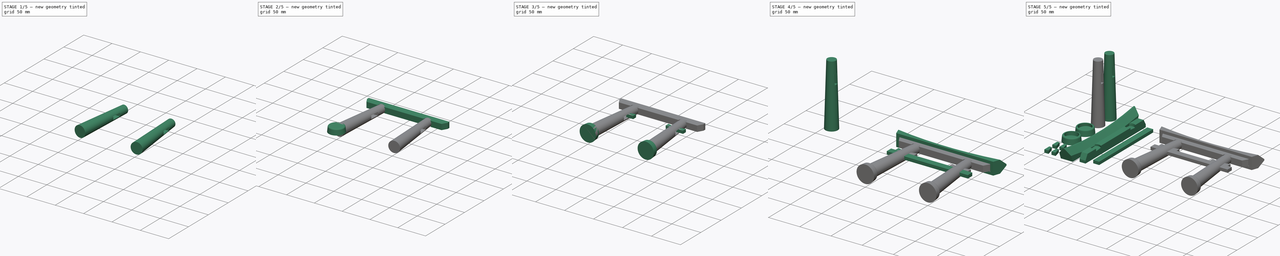
[diagram: build sequence overview — one tinted view per stage of 5, left to right]
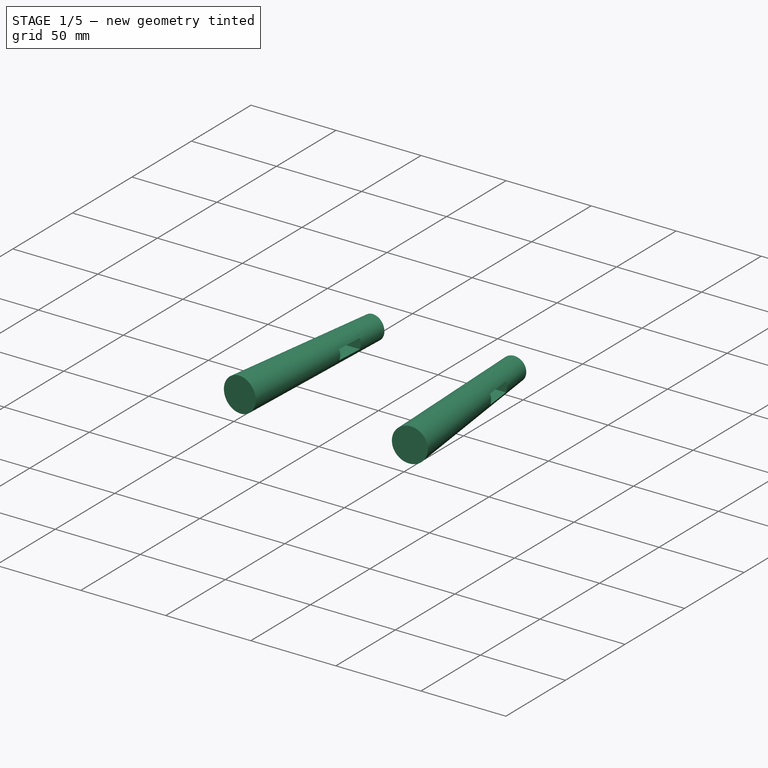
[diagram: stage 1 of 5 — iso view after this stage's code; geometry added in this stage tinted green]
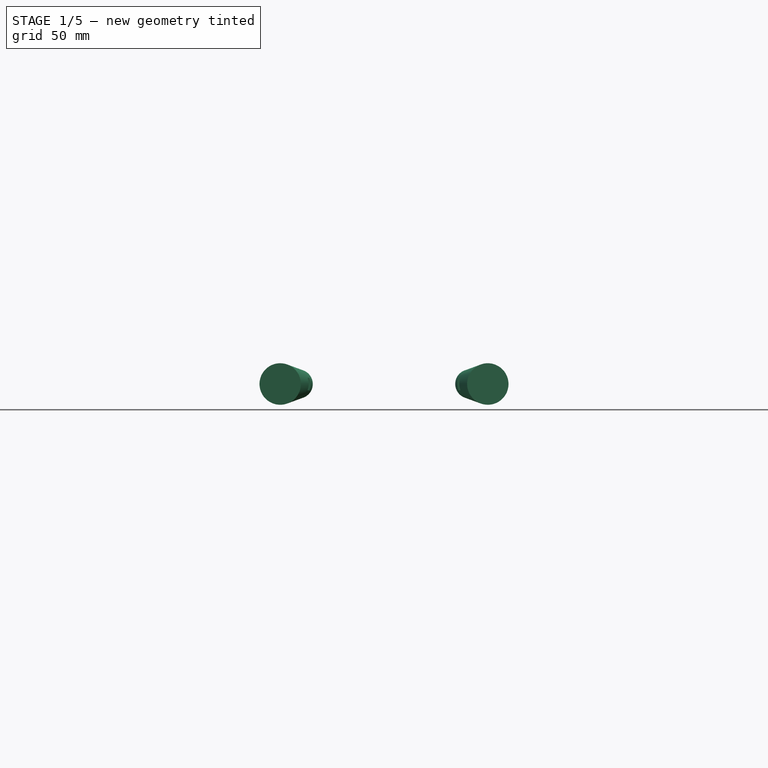
[diagram: stage 1 of 5 — front view after this stage's code; geometry added in this stage tinted green]
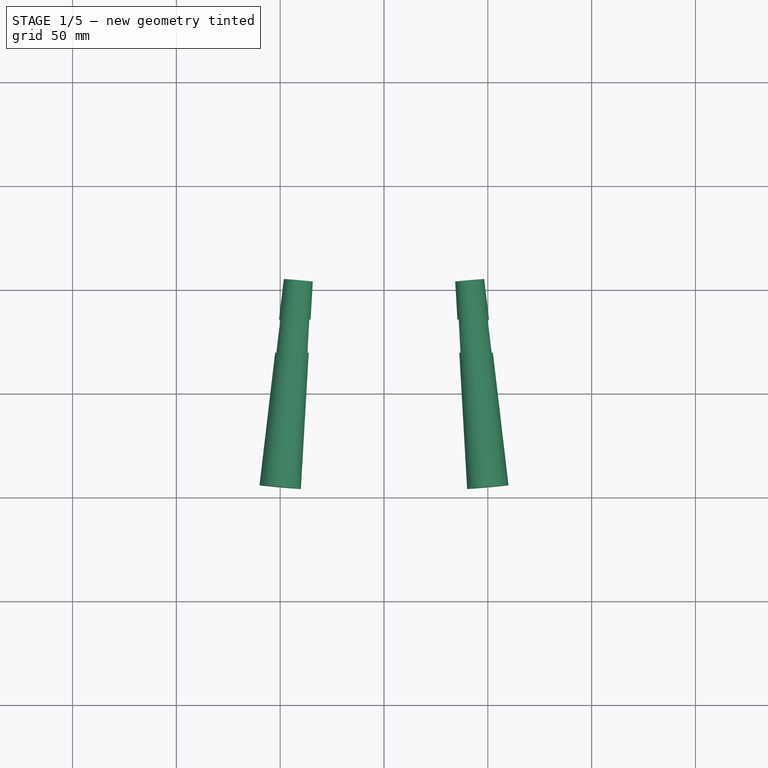
[diagram: stage 1 of 5 — top view after this stage's code; geometry added in this stage tinted green]
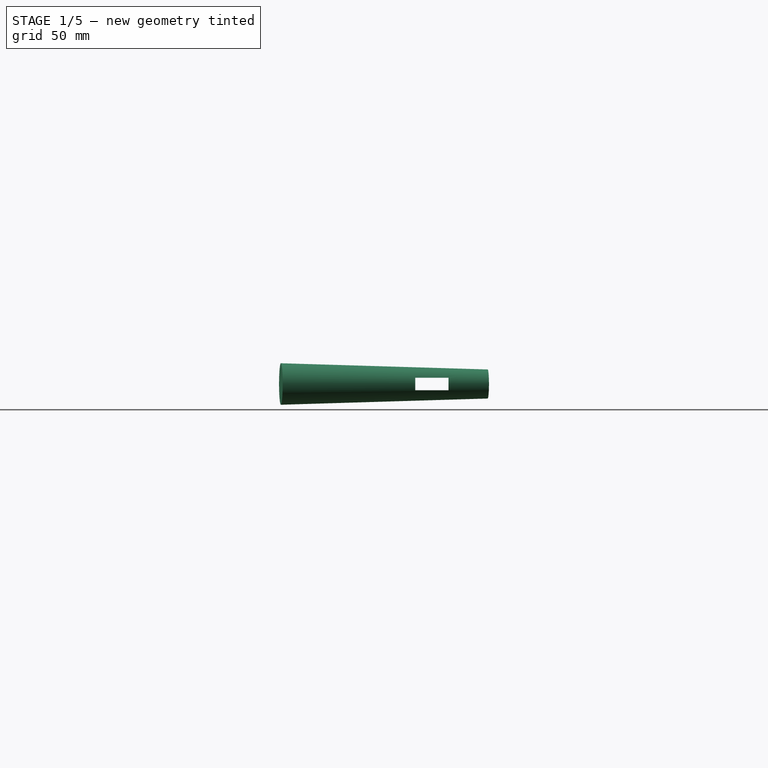
[diagram: stage 1 of 5 — right view after this stage's code; geometry added in this stage tinted green]
FCSTD DOCUMENT  (FreeCAD 0.15R4671 (Git))
Label: Torii
License: CreativeCommons Attribution-ShareAlike
LicenseURL: http://creativecommons.org/licenses/by-sa/4.0/
objects: Part::FeaturePython×29, App::Annotation×6, Part::Part2DObjectPython×6, Part::Cut×5, Part::Wedge×4, Part::Offset×4, App::DocumentObjectGroup×4, Part::Box×3, Part::Cone×2, Sketcher::SketchObject×2, PartDesign::Pocket×2, Part::Fillet×1, PartDesign::Chamfer×1, Part::MultiFuse×1
note: 62 computed .brp shape members not serialized (recipe doc carries the construction recipe); baked Part::Feature solids carry a one-line shape summary decoded from their .brp

FEATURE [Part::Cone] Cone  label="Column Seed"
  Angle = 360
  Height = 100
  Placement = pos=(0,0,5) rot=(-1,0,0;0.087266rad)
  Radius1 = 10
  Radius2 = 7
FEATURE [Part::Box] Box001  label="Crossing Board"
  Height = 10
  Length = 5
  Placement = pos=(2.5,115,70.5) rot=(0,0,1;3.14159rad)
  Width = 130
FEATURE [Part::FeaturePython] Clone003  label="Clone of Column Seed"  # Draft clone (typed FeaturePython)
  Objects = -> [Cone]
  Placement = pos=(0,100,5) rot=(1,0,0;0.087266rad)
  Scale = (1,1,1)
FEATURE [Part::FeaturePython] Clone  label="Clone of Crossing Board"  # Draft clone (typed FeaturePython)
  Objects = -> [Box001]
  Placement = pos=(2.5,115,35) rot=(0,0,1;3.14159rad)
  Scale = (1,1,1.5)
FEATURE [Part::Offset] Offset002  label="Crossing Board ClearanceObj"
  Fill = false
  Intersection = false
  Join = 2
  Mode = 0
  SelfIntersection = false
  Source = -> Clone
  Value = 0.5
FEATURE [Part::FeaturePython] Clone023  label="Clone of Crossing Board Offset"  # Draft clone (typed FeaturePython)
  Objects = -> [Offset002]
  Scale = (1,1,1)
FEATURE [Part::Cut] Cut  label="Left Column"
  Base = -> Cone
  Tool = -> Offset002
FEATURE [Part::Cut] Cut008  label="Right Column"
  Base = -> Clone003
  Tool = -> Clone023
FEATURE [Part::FeaturePython] Clone045  label="Left Hashira"  # Draft clone (typed FeaturePython)
  Objects = -> [Cut]
  Placement = pos=(0,0,0) rot=(0.57735,0.57735,0.57735;4.18879rad)
  Scale = (1,1,1)
FEATURE [Part::FeaturePython] Clone046  label="Right Hashira"  # Draft clone (typed FeaturePython)
  Objects = -> [Cut008]
  Placement = pos=(0,0,0) rot=(0.57735,0.57735,0.57735;4.18879rad)
  Scale = (1,1,1)
FEATURE [App::Annotation] Text  label="Kamebara Text"
  LabelText = Kamebara
  Position = (127,27,0)
FEATURE [Part::Part2DObjectPython] DWire  label="Kamebara Line"  # Draft 2D object (typed FeaturePython)
  ChamferSize = 0
  Closed = false
  End = (109,2,0)
  FilletRadius = 0
  Length = 78.7321
  MakeFace = true
  Points = (3) [(178,24,0),(129,24,0),(109,2,0)]
  Start = (178,24,0)
FEATURE [App::Annotation] Text001  label="Hashira Text"
  LabelText = Hashira
  Position = (29,45,0)
FEATURE [Part::Part2DObjectPython] DWire001  label="Hashira Line"  # Draft 2D object (typed FeaturePython)
  ChamferSize = 0
  Closed = false
  End = (100,27,0)
  FilletRadius = 0
  Length = 106.79
  MakeFace = true
  Points = (4) [(0,27,0),(30,42,0),(67,42,0),(100,27,0)]
  Start = (0,27,0)
FEATURE [App::Annotation] Text002  label="Nuki Text"
  LabelText = Nuki
  Position = (132,61,0)
FEATURE [Part::Part2DObjectPython] DWire002  label="Nuki Line"  # Draft 2D object (typed FeaturePython)
  ChamferSize = 0
  Closed = false
  End = (106,75,0)
  FilletRadius = 0
  Length = 56.0644
  MakeFace = true
  Points = (3) [(157,58,0),(132,58,0),(106,75,0)]
  Start = (157,58,0)
FEATURE [App::Annotation] Text003  label="Kusabi Text"
  LabelText = Kusabi
  Position = (138,84,0)
FEATURE [Part::Part2DObjectPython] DWire003  label="Kusabi Line"  # Draft 2D object (typed FeaturePython)
  ChamferSize = 0
  Closed = false
  End = (107,84,0)
  FilletRadius = 0
  Length = 66.0624
  MakeFace = true
  Points = (3) [(173,82,0),(139,82,0),(107,84,0)]
  Start = (173,82,0)
FEATURE [App::Annotation] Text004  label="Shimaki Text"
  LabelText = Shimaki
  Position = (151,111,0)
FEATURE [Part::Part2DObjectPython] DWire004  label="Shimaki Line"  # Draft 2D object (typed FeaturePython)
  ChamferSize = 0
  Closed = false
  End = (114,105,0)
  FilletRadius = 0
  Length = 78.2156
  MakeFace = true
  Points = (3) [(192,109,0),(151,109,0),(114,105,0)]
  Start = (192,109,0)
FEATURE [App::Annotation] Text005  label="Kasagi Text"
  LabelText = Kasagi
  Position = (157,139,0)
FEATURE [Part::Part2DObjectPython] DWire005  label="Kasagi Line"  # Draft 2D object (typed FeaturePython)
  ChamferSize = 0
  Closed = false
  End = (126,121,0)
  FilletRadius = 0
  Length = 66.5398
  MakeFace = true
  Points = (3) [(190,134,0),(158,134,0),(126,121,0)]
  Start = (190,134,0)
FEATURE [App::DocumentObjectGroup] Group003  label="Annotations"
  Group = -> [Text,DWire,Text001,DWire001,Text002,DWire002,Text003,DWire003,Text004,DWire004,Text005,DWire005]
FEATURE [App::DocumentObjectGroup] Group  label="Torii Mounted"
  Group = -> [Clone036,Clone037,Clone038,Clone039,Clone040,Clone041,Clone042,Clone043,Clone044,Clone045,Clone046,Group003]
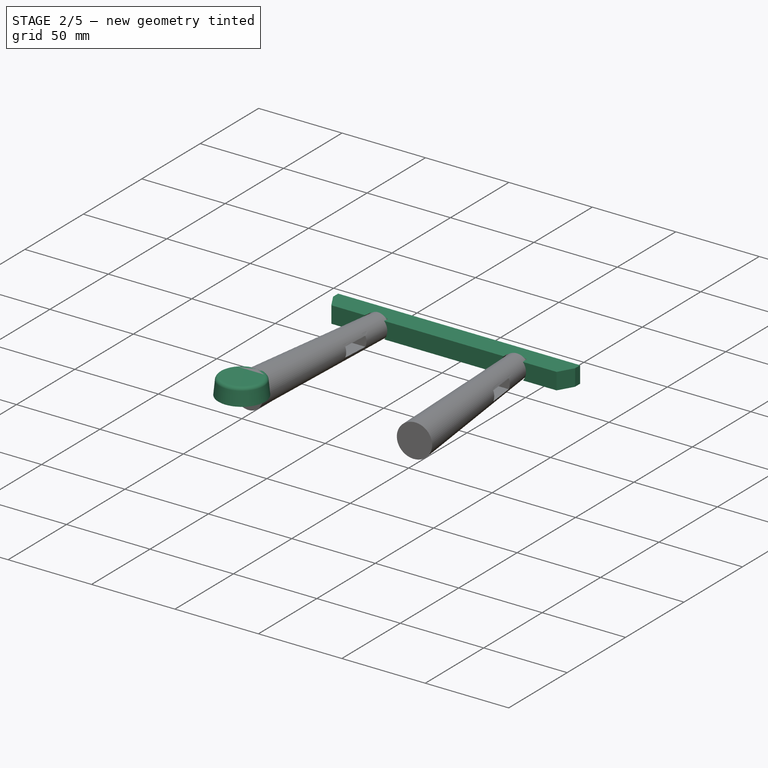
[diagram: stage 2 of 5 — iso view after this stage's code; geometry added in this stage tinted green]
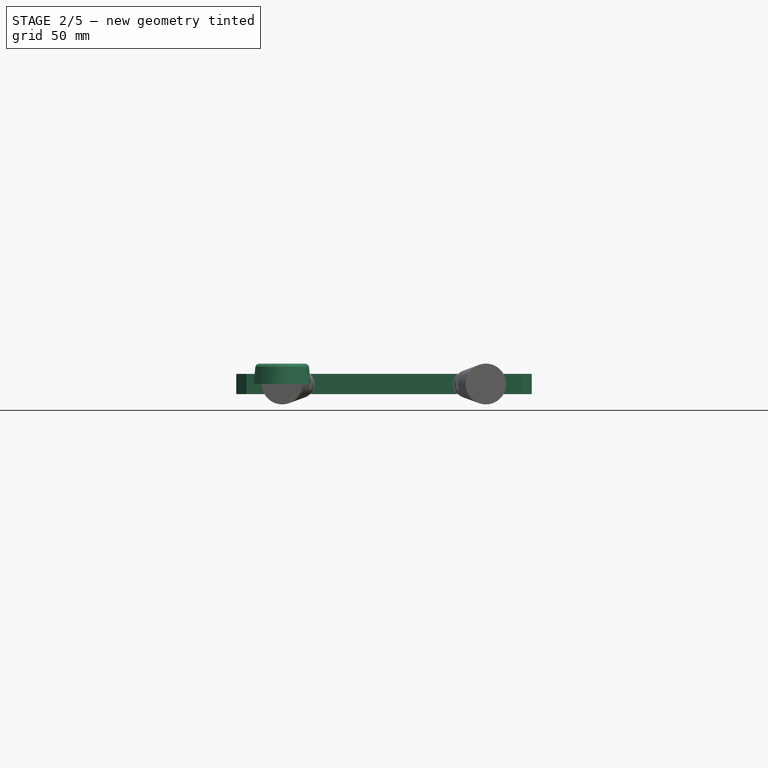
[diagram: stage 2 of 5 — front view after this stage's code; geometry added in this stage tinted green]
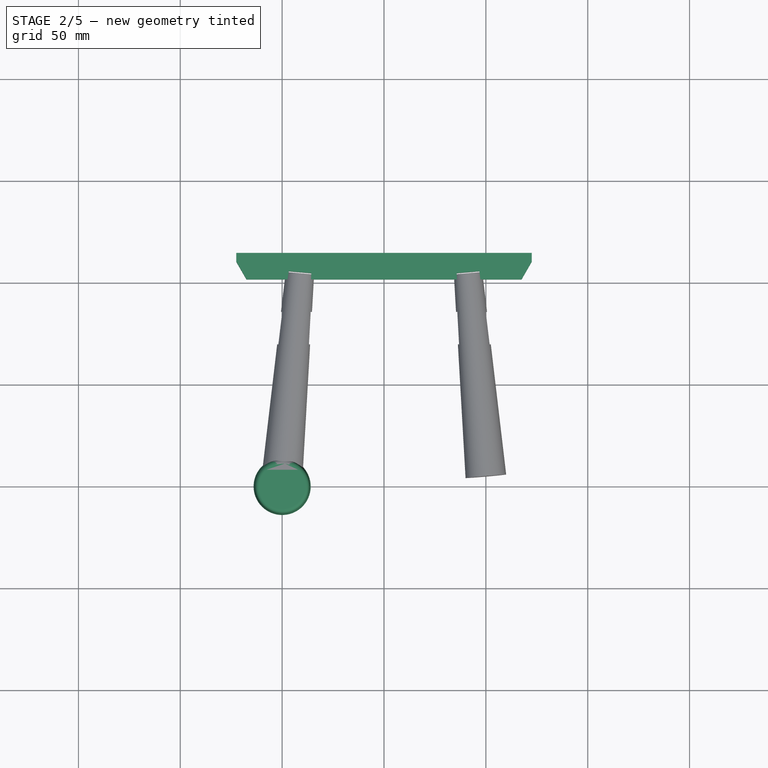
[diagram: stage 2 of 5 — top view after this stage's code; geometry added in this stage tinted green]
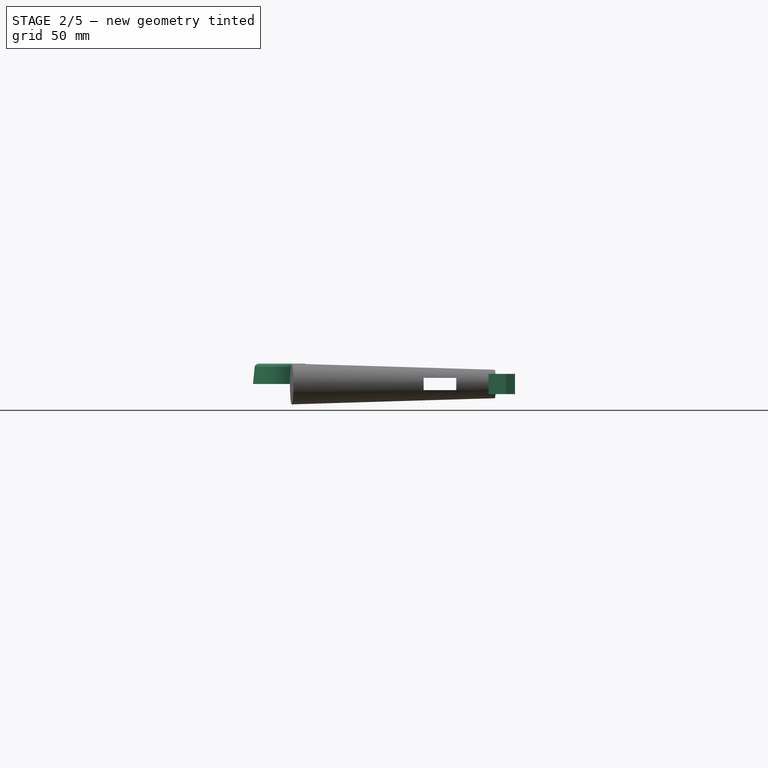
[diagram: stage 2 of 5 — right view after this stage's code; geometry added in this stage tinted green]
FEATURE [Part::Box] Box002  label="Tier 1 Top Board Seed"
  Height = 13
  Length = 10
  Placement = pos=(-5,-25,101.619) rot=(0,0,1;0rad)
  Width = 150
FEATURE [Sketcher::SketchObject] Sketch
  ExternalGeometry = -> [Box002]
  Placement = pos=(-5,-25,101.619) rot=(0.57735,-0.57735,-0.57735;2.0944rad)
  Support = -> Box002 [Face1]
  sketch-geometry (17):
    g0: LineSegment [constr] StartX=-142.494 StartY=0 StartZ=0 EndX=-150 EndY=13 EndZ=0
    g1: LineSegment [constr] StartX=-150 StartY=13 StartZ=0 EndX=-150 EndY=19.7044 EndZ=0
    g2: LineSegment [constr] StartX=-150 StartY=19.7044 StartZ=0 EndX=0 EndY=19.7044 EndZ=0
    g3: LineSegment [constr] StartX=0 StartY=19.7044 StartZ=0 EndX=0 EndY=13 EndZ=0
    g4: LineSegment [constr] StartX=0 StartY=13 StartZ=0 EndX=-7.50555 EndY=0 EndZ=0
    g5: LineSegment StartX=-7.50555 StartY=0 StartZ=0 EndX=-7.50555 EndY=-8.96614 EndZ=0
    g6: LineSegment StartX=-7.50555 StartY=-8.96614 StartZ=0 EndX=16.15 EndY=-8.96614 EndZ=0
    g7: LineSegment StartX=16.15 StartY=-8.96614 StartZ=0 EndX=16.15 EndY=25.7571 EndZ=0
    g8: LineSegment StartX=16.15 StartY=25.7571 StartZ=0 EndX=-161.324 EndY=25.7571 EndZ=0
    g9: LineSegment StartX=-161.324 StartY=25.7571 StartZ=0 EndX=-161.324 EndY=-10.1845 EndZ=0
    g10: LineSegment StartX=-161.324 StartY=-10.1845 StartZ=0 EndX=-142.494 EndY=-10.1845 EndZ=0
    g11: LineSegment StartX=-142.494 StartY=-10.1845 StartZ=0 EndX=-142.494 EndY=0 EndZ=0
    g12: LineSegment StartX=-147.5 StartY=19.7044 StartZ=0 EndX=-147.5 EndY=8.66987 EndZ=0
    g13: LineSegment StartX=-147.5 StartY=8.66987 StartZ=0 EndX=-142.494 EndY=0 EndZ=0
    g14: LineSegment StartX=-2.5 StartY=19.7044 StartZ=0 EndX=-2.5 EndY=8.66987 EndZ=0
    g15: LineSegment StartX=-7.50555 StartY=0 StartZ=0 EndX=-2.5 EndY=8.66987 EndZ=0
    g16: LineSegment StartX=-2.5 StartY=19.7044 StartZ=0 EndX=-147.5 EndY=19.7044 EndZ=0
  constraints (42):
    c: PointOnObject(g0,g-4)
    c: Coincident(g0,g-3)
    c: Coincident(g0,g1)
    c: Coincident(g1,g2)
    c: Horizontal(g2)
    c: Coincident(g2,g3)
    c: Coincident(g3,g-3)
    c: Vertical(g3)
    c: Coincident(g3,g4)
    c: PointOnObject(g4,g-4)
    c: Coincident(g4,g5)
    c: Vertical(g5)
    c: Coincident(g5,g6)
    c: Horizontal(g6)
    c: Coincident(g6,g7)
    c: Vertical(g7)
    c: Coincident(g7,g8)
    c: Horizontal(g8)
    c: Coincident(g8,g9)
    c: Vertical(g9)
    c: Coincident(g9,g10)
    c: Horizontal(g10)
    c: Coincident(g10,g11)
    c: Coincident(g11,g0)
    c: Vertical(g11)
    c: Angle(g0,g-3) = 1.0472
    c: Angle(g-3,g4) = 1.0472
    c: Vertical(g1)
    c: PointOnObject(g12,g2)
    c: Vertical(g12)
    c: PointOnObject(g12,g0)
    c: Coincident(g13,g12)
    c: Coincident(g13,g0)
    c: PointOnObject(g14,g2)
    c: PointOnObject(g14,g4)
    c: Vertical(g14)
    c: Coincident(g15,g4)
    c: Coincident(g15,g14)
    c: Coincident(g16,g14)
    c: Coincident(g16,g12)
    c: DistanceX(g1,g12) = 2.5
    c: DistanceX(g14,g2) = 2.5
FEATURE [PartDesign::Pocket] Pocket
  Length = 5
  Placement = pos=(-5,-25,101.619) rot=(0,0,1;0rad)
  Sketch = -> Sketch
  Type = 1
FEATURE [Part::Cone] Cone004
  Angle = 360
  Height = 10
  Radius1 = 14
  Radius2 = 13
FEATURE [Part::Fillet] Fillet002
  Base = -> Cone004
  Edges = 1 edges r=2: [Edge1]
FEATURE [Part::FeaturePython] Clone020  label="Clone of Column Seed001"  # Draft clone (typed FeaturePython)
  Objects = -> [Clone003]
  Placement = pos=(0,100,5) rot=(1,0,0;0.087266rad)
  Scale = (1,1,1)
FEATURE [Part::Offset] Offset  label="Right Column ClearanceObj"
  Fill = false
  Intersection = false
  Join = 2
  Mode = 0
  SelfIntersection = false
  Source = -> Clone020
  Value = 0.5
FEATURE [Part::FeaturePython] Clone021  label="Clone of Column Seed002"  # Draft clone (typed FeaturePython)
  Objects = -> [Cone]
  Placement = pos=(0,0,5) rot=(-1,0,0;0.087266rad)
  Scale = (1,1,1)
FEATURE [Part::Offset] Offset001  label="Left Column ClearanceObj"
  Fill = false
  Intersection = false
  Join = 2
  Mode = 0
  SelfIntersection = false
  Source = -> Clone021
  Value = 0.5
FEATURE [Part::MultiFuse] Fusion  label="Columns with Offset"
  Shapes = -> [Offset,Offset001]
FEATURE [Part::Cut] Cut007  label="Tier 1 Roof"
  Base = -> Pocket
  Tool = -> Fusion
FEATURE [Part::FeaturePython] Clone044  label="Shimaki"  # Draft clone (typed FeaturePython)
  Objects = -> [Cut007]
  Placement = pos=(0,0,0) rot=(0.57735,0.57735,0.57735;4.18879rad)
  Scale = (1,1,1)
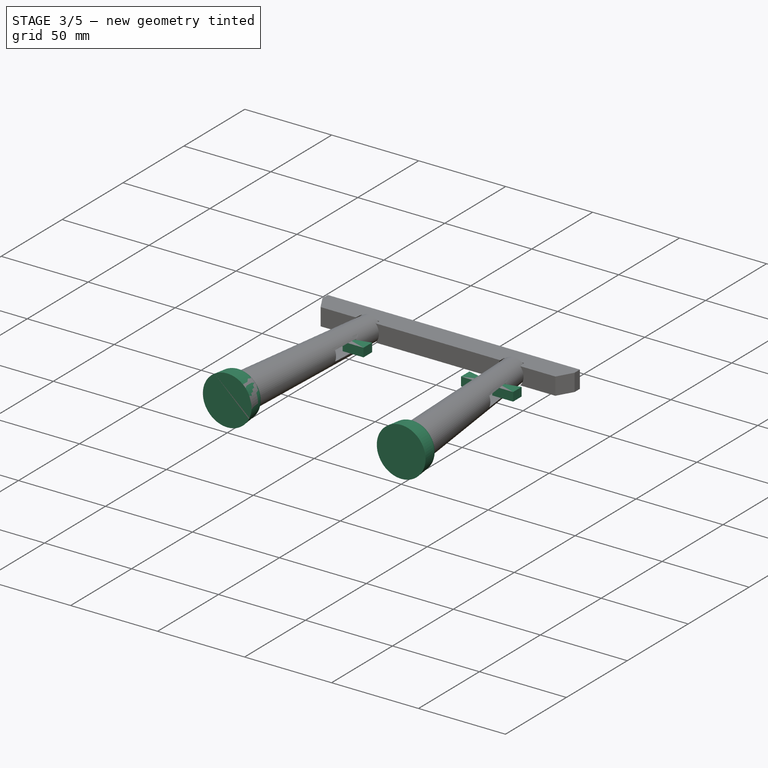
[diagram: stage 3 of 5 — iso view after this stage's code; geometry added in this stage tinted green]
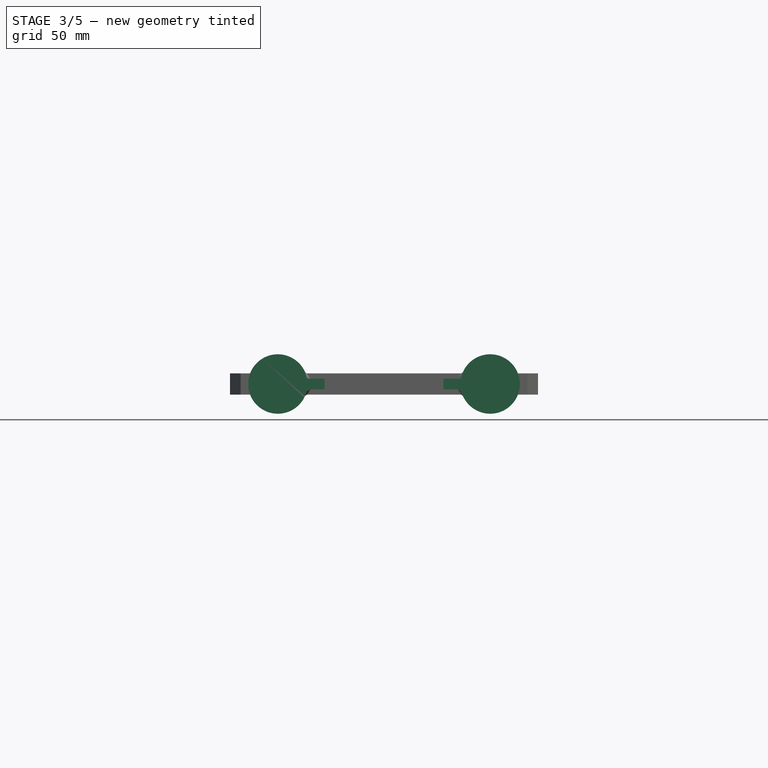
[diagram: stage 3 of 5 — front view after this stage's code; geometry added in this stage tinted green]
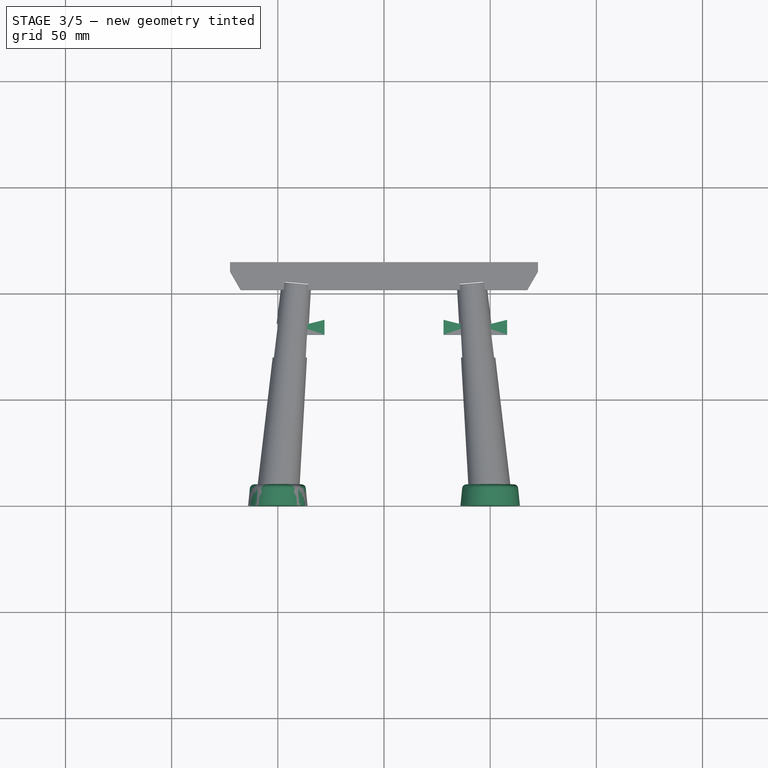
[diagram: stage 3 of 5 — top view after this stage's code; geometry added in this stage tinted green]
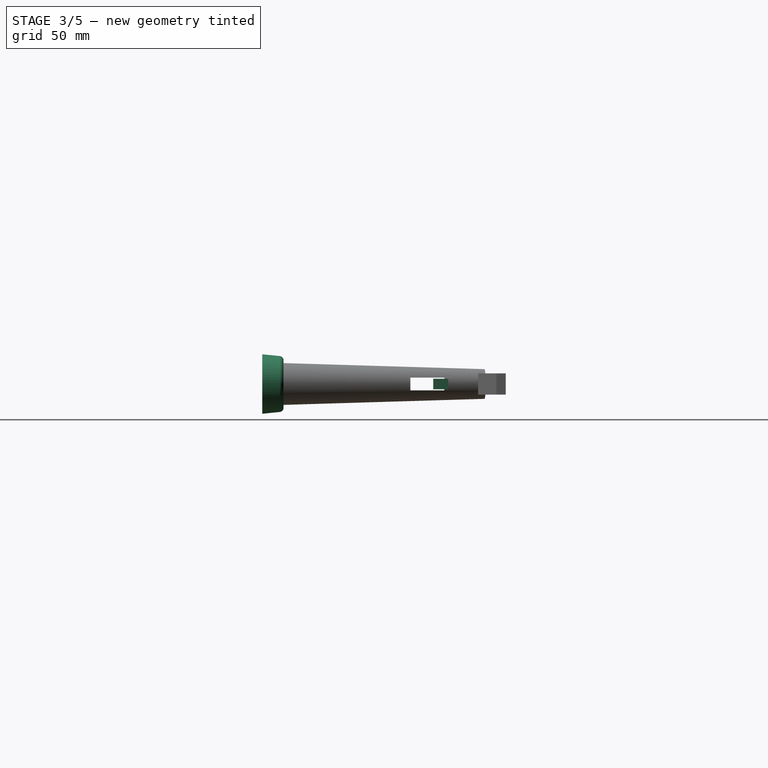
[diagram: stage 3 of 5 — right view after this stage's code; geometry added in this stage tinted green]
FEATURE [Part::Wedge] Wedge001  label="Wedge 2"
  Placement = pos=(-2.5,78,80.5) rot=(0,0,1;0rad)
  X2max = 5
  X2min = 0
  Xmax = 5
  Xmin = 0
  Ymax = 12
  Ymin = 0
  Z2max = 4
  Z2min = 0
  Zmax = 7
  Zmin = 0
FEATURE [Part::Wedge] Wedge002  label="Wedge 3"
  Placement = pos=(2.5,108,80.5) rot=(0,0,1;3.14159rad)
  X2max = 5
  X2min = 0
  Xmax = 5
  Xmin = 0
  Ymax = 12
  Ymin = 0
  Z2max = 4
  Z2min = 0
  Zmax = 7
  Zmin = 0
FEATURE [Part::Wedge] Wedge003  label="Wedge 4"
  Placement = pos=(2.5,22,80.5) rot=(0,0,1;3.14159rad)
  X2max = 5
  X2min = 0
  Xmax = 5
  Xmin = 0
  Ymax = 12
  Ymin = 0
  Z2max = 4
  Z2min = 0
  Zmax = 7
  Zmin = 0
FEATURE [Part::Cut] Cut006  label="Left Base"
  Base = -> Fillet002
  Tool = -> Offset001
FEATURE [Part::FeaturePython] Clone022  label="Right Base"  # Draft clone (typed FeaturePython)
  Objects = -> [Cut006]
  Placement = pos=(0,100,0) rot=(0,0,1;3.14159rad)
  Scale = (1,1,1)
FEATURE [Part::FeaturePython] Clone039  label="Kusabi 2"  # Draft clone (typed FeaturePython)
  Objects = -> [Wedge001]
  Placement = pos=(78,80.5,-2.5) rot=(0.57735,0.57735,0.57735;4.18879rad)
  Scale = (1,1,1)
FEATURE [Part::FeaturePython] Clone040  label="Kusabi 3"  # Draft clone (typed FeaturePython)
  Objects = -> [Wedge002]
  Placement = pos=(108,80.5,2.5) rot=(-0.57735,0.57735,0.57735;2.0944rad)
  Scale = (1,1,1)
FEATURE [Part::FeaturePython] Clone041  label="Kusabi 4"  # Draft clone (typed FeaturePython)
  Objects = -> [Wedge003]
  Placement = pos=(22,80.5,2.5) rot=(-0.57735,0.57735,0.57735;2.0944rad)
  Scale = (1,1,1)
FEATURE [Part::FeaturePython] Clone042  label="Left Kamebara"  # Draft clone (typed FeaturePython)
  Objects = -> [Cut006]
  Placement = pos=(0,0,0) rot=(0.57735,0.57735,0.57735;4.18879rad)
  Scale = (1,1,1)
FEATURE [Part::FeaturePython] Clone043  label="Right Kamebara"  # Draft clone (typed FeaturePython)
  Objects = -> [Clone022]
  Placement = pos=(100,0,0) rot=(0.57735,-0.57735,-0.57735;4.18879rad)
  Scale = (1,1,1)
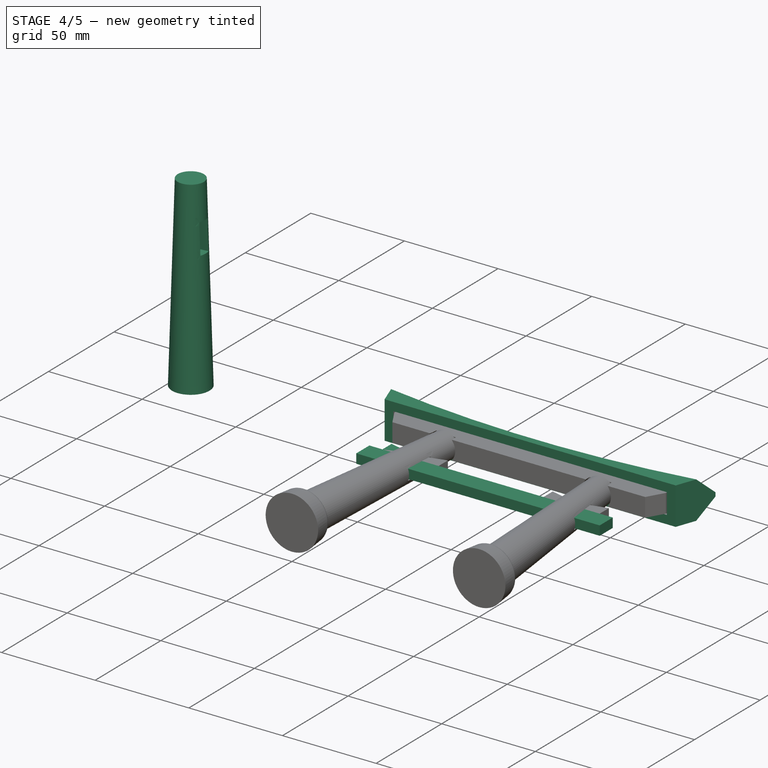
[diagram: stage 4 of 5 — iso view after this stage's code; geometry added in this stage tinted green]
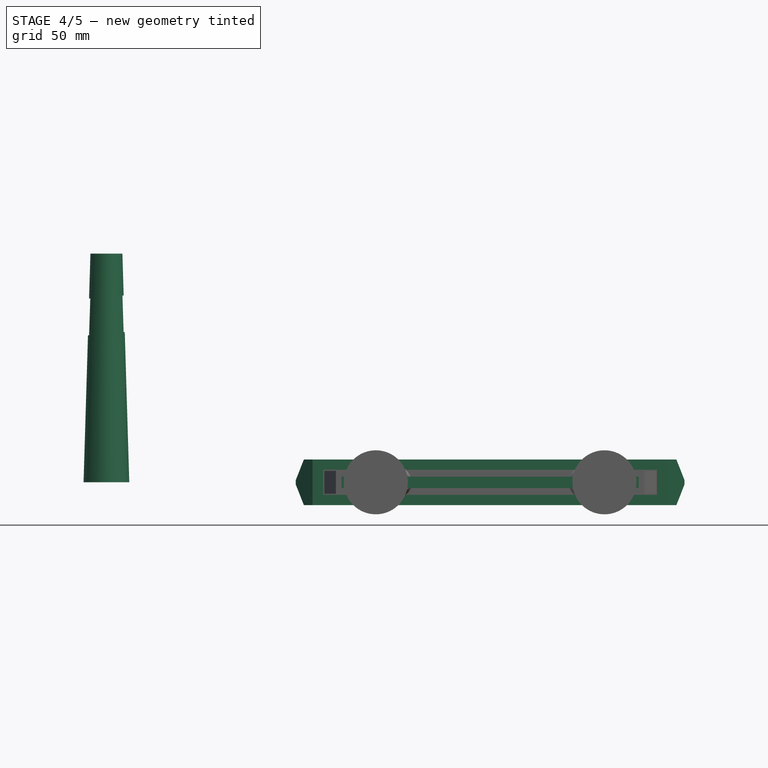
[diagram: stage 4 of 5 — front view after this stage's code; geometry added in this stage tinted green]
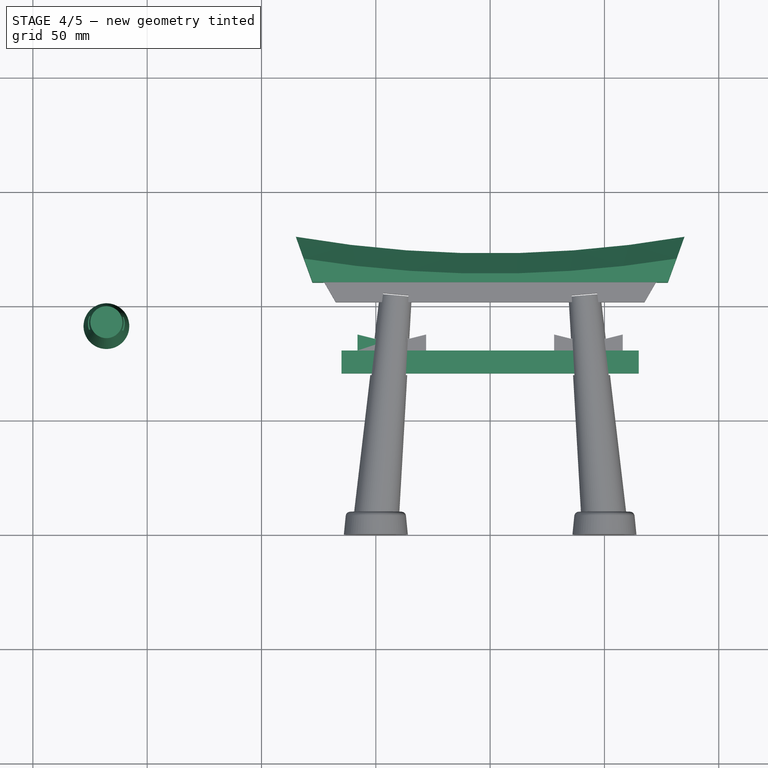
[diagram: stage 4 of 5 — top view after this stage's code; geometry added in this stage tinted green]
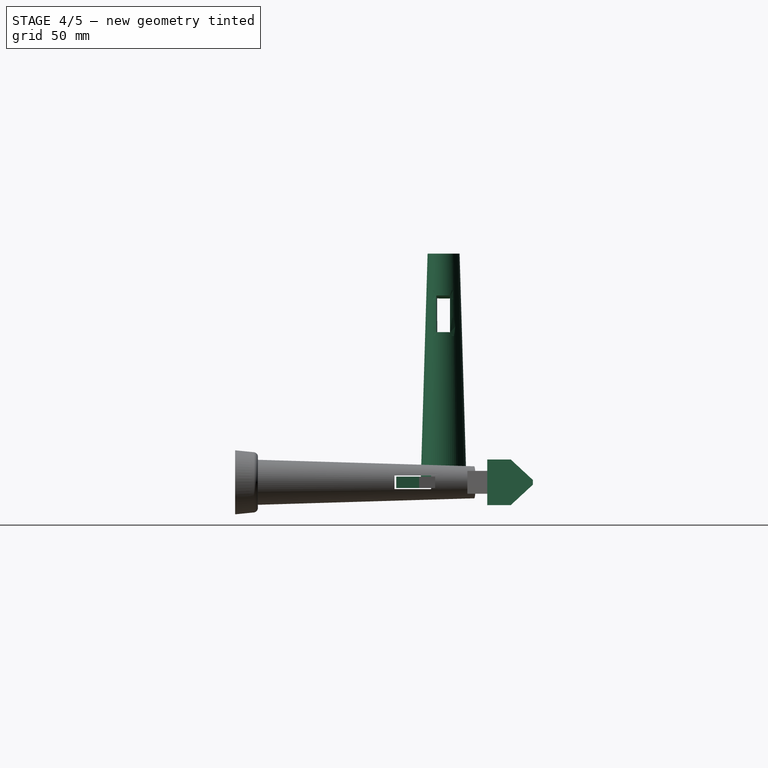
[diagram: stage 4 of 5 — right view after this stage's code; geometry added in this stage tinted green]
FEATURE [Part::Wedge] Wedge  label="Wedge 1"
  Placement = pos=(-2.5,-8,80.5) rot=(0,0,1;0rad)
  X2max = 5
  X2min = 0
  Xmax = 5
  Xmin = 0
  Ymax = 12
  Ymin = 0
  Z2max = 4
  Z2min = 0
  Zmax = 7
  Zmin = 0
FEATURE [Part::Box] Box003  label="Tier 2 Top Board Seed"
  Height = 20
  Length = 20
  Placement = pos=(-10,-35,110.289) rot=(0,0,1;0rad)
  Width = 170
FEATURE [Sketcher::SketchObject] Sketch001
  ExternalGeometry = -> [Box003]
  Placement = pos=(-10,-35,110.289) rot=(0.57735,-0.57735,-0.57735;2.0944rad)
  Support = -> Box003 [Face1]
  sketch-geometry (12):
    g0: LineSegment StartX=-170 StartY=20 StartZ=0 EndX=-162.721 EndY=0 EndZ=0
    g1: LineSegment StartX=-162.721 StartY=0 StartZ=0 EndX=-162.721 EndY=-11.7123 EndZ=0
    g2: LineSegment StartX=-162.721 StartY=-11.7123 StartZ=0 EndX=-178.952 EndY=-11.7123 EndZ=0
    g3: LineSegment StartX=-178.952 StartY=-11.7123 StartZ=0 EndX=-178.952 EndY=27.4623 EndZ=0
    g4: LineSegment StartX=-178.952 StartY=27.4623 StartZ=0 EndX=7.77564 EndY=27.4623 EndZ=0
    g5: LineSegment StartX=7.77564 StartY=27.4623 StartZ=0 EndX=7.77564 EndY=-10.7013 EndZ=0
    g6: LineSegment StartX=7.77564 StartY=-10.7013 StartZ=0 EndX=-7.2794 EndY=-10.7013 EndZ=0
    g7: LineSegment StartX=-7.2794 StartY=-10.7013 StartZ=0 EndX=-7.2794 EndY=0 EndZ=0
    g8: LineSegment StartX=-7.2794 StartY=0 StartZ=0 EndX=0 EndY=20 EndZ=0
    g9: ArcOfCircle CenterX=-85 CenterY=512.722 CenterZ=0 NormalX=0 NormalY=0 NormalZ=1 Radius=500 StartAngle=4.54156 EndAngle=4.88322
    g10: LineSegment [constr] StartX=-85 StartY=512.722 StartZ=0 EndX=-170 EndY=20 EndZ=0
    g11: LineSegment [constr] StartX=0 StartY=20 StartZ=0 EndX=-85 EndY=512.722 EndZ=0
  constraints (29):
    c: Coincident(g-3,g0)
    c: PointOnObject(g0,g-4)
    c: Coincident(g0,g1)
    c: Vertical(g1)
    c: Coincident(g1,g2)
    c: Horizontal(g2)
    c: Coincident(g2,g3)
    c: Vertical(g3)
    c: Coincident(g3,g4)
    c: Horizontal(g4)
    c: Coincident(g4,g5)
    c: Vertical(g5)
    c: Coincident(g5,g6)
    c: Horizontal(g6)
    c: Coincident(g6,g7)
    c: PointOnObject(g7,g-4)
    c: Vertical(g7)
    c: Coincident(g7,g8)
    c: Coincident(g8,g-3)
    c: Angle(g0,g-3) = 1.22173
    c: Angle(g-3,g8) = 1.22173
    c: Coincident(g9,g0)
    c: Coincident(g9,g8)
    c: Radius(g9) = 500
    c: Coincident(g10,g9)
    c: Coincident(g10,g0)
    c: Coincident(g11,g8)
    c: Coincident(g11,g9)
    c: Equal(g11,g10)
FEATURE [PartDesign::Pocket] Pocket001
  Length = 5
  Placement = pos=(-10,-35,110.289) rot=(0,0,1;0rad)
  Sketch = -> Sketch001
  Type = 1
FEATURE [PartDesign::Chamfer] Chamfer
  Base = -> Pocket001 [Edge6,Edge1]
  Placement = pos=(-10,-35,110.289) rot=(0,0,1;0rad)
  Size = 9
FEATURE [Part::FeaturePython] Clone024  label="Clone of Pocket"  # Draft clone (typed FeaturePython)
  Objects = -> [Pocket]
  Placement = pos=(-5,-25,101.619) rot=(0,0,1;0rad)
  Scale = (1,1,1)
FEATURE [Part::Offset] Offset003  label="Tier 1 Roof ClearanceObj"
  Fill = false
  Intersection = false
  Join = 2
  Mode = 0
  SelfIntersection = false
  Source = -> Clone024
  Value = 0.5
FEATURE [Part::Cut] Cut009  label="Tier 2 Roof"
  Base = -> Chamfer
  Tool = -> Offset003
FEATURE [Part::FeaturePython] Clone035  label="Left Hashira for Printing"  # Draft clone (typed FeaturePython)
  Objects = -> [Cut]
  Placement = pos=(-117.415,91.1963,-4.98097) rot=(0.042403,-0.04358,-0.99815;1.60003rad)
  Scale = (1,1,1)
FEATURE [App::DocumentObjectGroup] Group001  label="Parts for Printing"
  Group = -> [Clone025,Clone026,Clone027,Clone028,Clone029,Clone030,Clone031,Clone032,Clone033,Clone034,Clone035]
FEATURE [Part::FeaturePython] Clone036  label="Kasagi"  # Draft clone (typed FeaturePython)
  Objects = -> [Cut009]
  Placement = pos=(0,0,0) rot=(0.57735,0.57735,0.57735;4.18879rad)
  Scale = (1,1,1)
FEATURE [Part::FeaturePython] Clone037  label="Nuki"  # Draft clone (typed FeaturePython)
  Objects = -> [Box001]
  Placement = pos=(115,70.5,2.5) rot=(-0.57735,0.57735,0.57735;2.0944rad)
  Scale = (1,1,1)
FEATURE [Part::FeaturePython] Clone038  label="Kusabi 1"  # Draft clone (typed FeaturePython)
  Objects = -> [Wedge]
  Placement = pos=(-8,80.5,-2.5) rot=(0.57735,0.57735,0.57735;4.18879rad)
  Scale = (1,1,1)
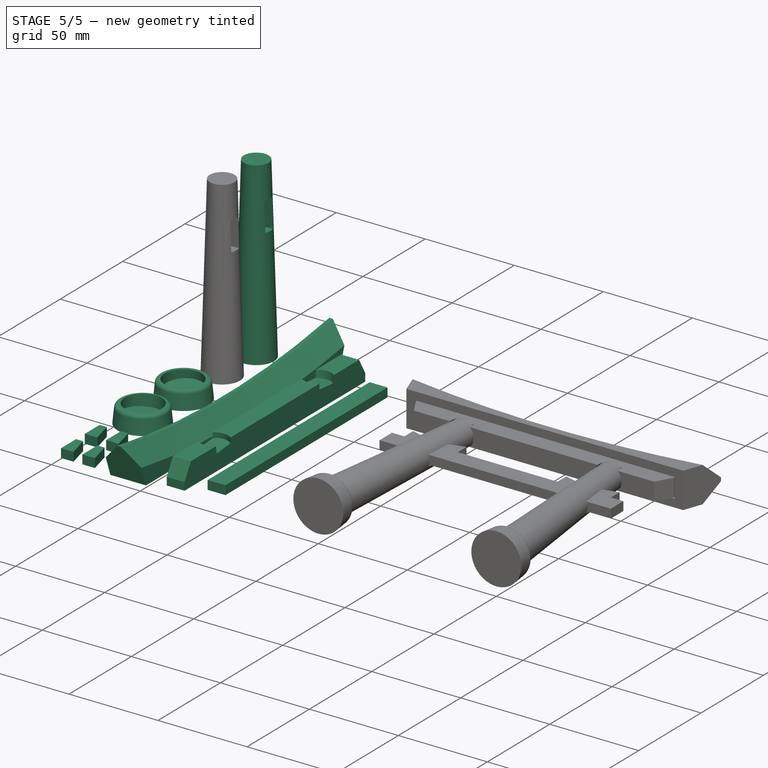
[diagram: stage 5 of 5 — iso view after this stage's code; geometry added in this stage tinted green]
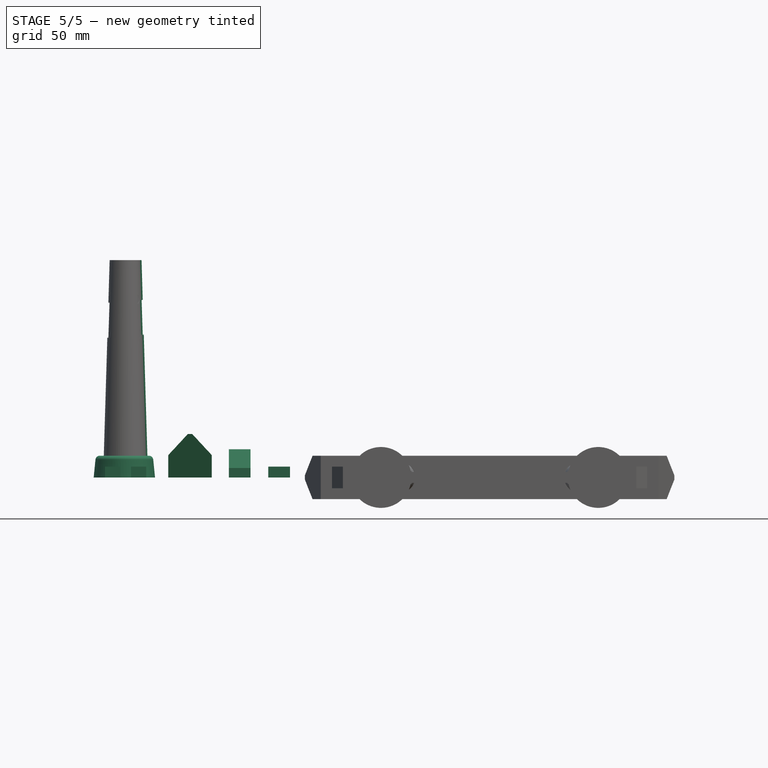
[diagram: stage 5 of 5 — front view after this stage's code; geometry added in this stage tinted green]
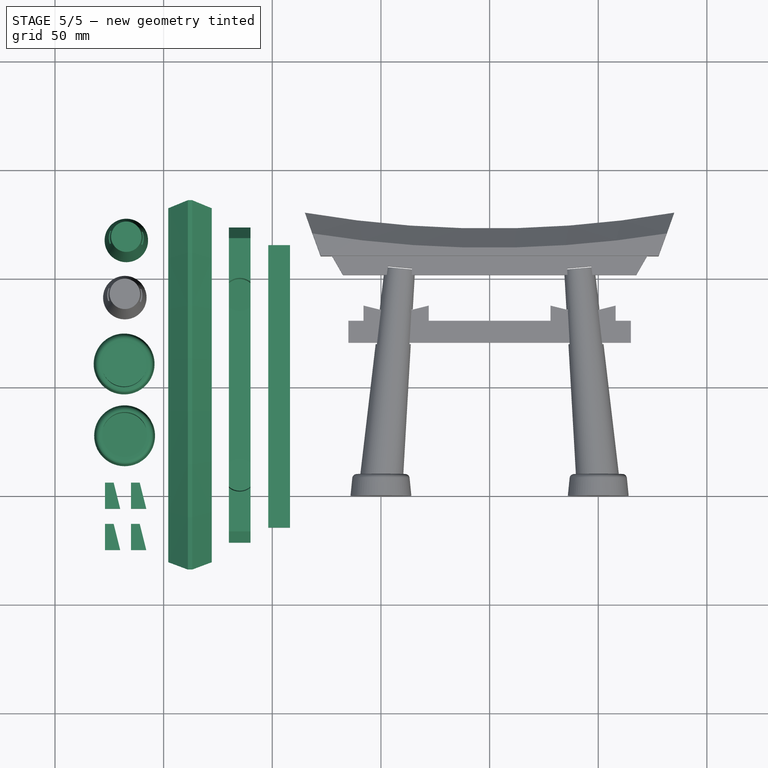
[diagram: stage 5 of 5 — top view after this stage's code; geometry added in this stage tinted green]
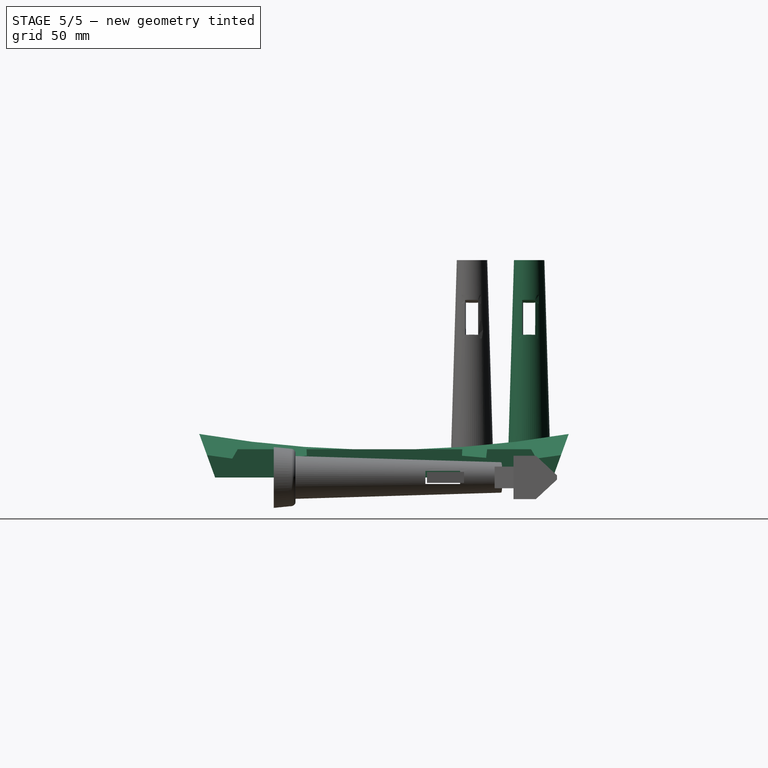
[diagram: stage 5 of 5 — right view after this stage's code; geometry added in this stage tinted green]
FEATURE [App::DocumentObjectGroup] Group002  label="Building Objects"
  Group = -> [Pocket001,Box003,Box002,Box001,Wedge,Wedge001,Wedge002,Wedge003,Cut006,Clone022,Cut007,Cut,Cut008,Cut009]
FEATURE [Part::FeaturePython] Clone025  label="Kasagi for Printing"  # Draft clone (typed FeaturePython)
  Objects = -> [Cut009]
  Placement = pos=(-87.8554,0.706437,-110.289) rot=(0,0,1;0rad)
  Scale = (1,1,1)
FEATURE [Part::FeaturePython] Clone026  label="Kusabi 1 for Printing"  # Draft clone (typed FeaturePython)
  Objects = -> [Wedge002]
  Placement = pos=(-127,-25,5) rot=(0,1,0;1.5708rad)
  Scale = (1,1,1)
FEATURE [Part::FeaturePython] Clone027  label="Kusabi 2 for Printing"  # Draft clone (typed FeaturePython)
  Objects = -> [Wedge]
  Placement = pos=(-115,-6,5) rot=(0,1,0;1.5708rad)
  Scale = (1,1,1)
FEATURE [Part::FeaturePython] Clone028  label="Nuki for Printing"  # Draft clone (typed FeaturePython)
  Objects = -> [Box001]
  Placement = pos=(-51.845,-14.7008,5) rot=(0,1,0;1.5708rad)
  Scale = (1,1,1)
FEATURE [Part::FeaturePython] Clone029  label="Kusabi 3 for Printing"  # Draft clone (typed FeaturePython)
  Objects = -> [Wedge001]
  Placement = pos=(-127,-6,5) rot=(0,1,0;1.5708rad)
  Scale = (1,1,1)
FEATURE [Part::FeaturePython] Clone030  label="Right Kamebara for Printing"  # Draft clone (typed FeaturePython)
  Objects = -> [Clone022]
  Placement = pos=(-118.186,60.6642,0) rot=(0,0,1;3.14159rad)
  Scale = (1,1,1)
FEATURE [Part::FeaturePython] Clone031  label="Kusabi 4 for Printing"  # Draft clone (typed FeaturePython)
  Objects = -> [Wedge003]
  Placement = pos=(-115,-25,5) rot=(0,1,0;1.5708rad)
  Scale = (1,1,1)
FEATURE [Part::FeaturePython] Clone032  label="Left Kamebara for Printing"  # Draft clone (typed FeaturePython)
  Objects = -> [Cut006]
  Placement = pos=(-117.959,27.6266,0) rot=(0,0,1;0rad)
  Scale = (1,1,1)
FEATURE [Part::FeaturePython] Clone033  label="Shimaki for Printing"  # Draft clone (typed FeaturePython)
  Objects = -> [Cut007]
  Placement = pos=(-65.0037,0.888366,114.619) rot=(0,1,0;3.14159rad)
  Scale = (1,1,1)
FEATURE [Part::FeaturePython] Clone034  label="Right Hashira for Printing"  # Draft clone (typed FeaturePython)
  Objects = -> [Cut008]
  Placement = pos=(-17.1591,114.301,3.7346) rot=(-0.044998,-0.043575,0.998036;1.54065rad)
  Scale = (1,1,1)
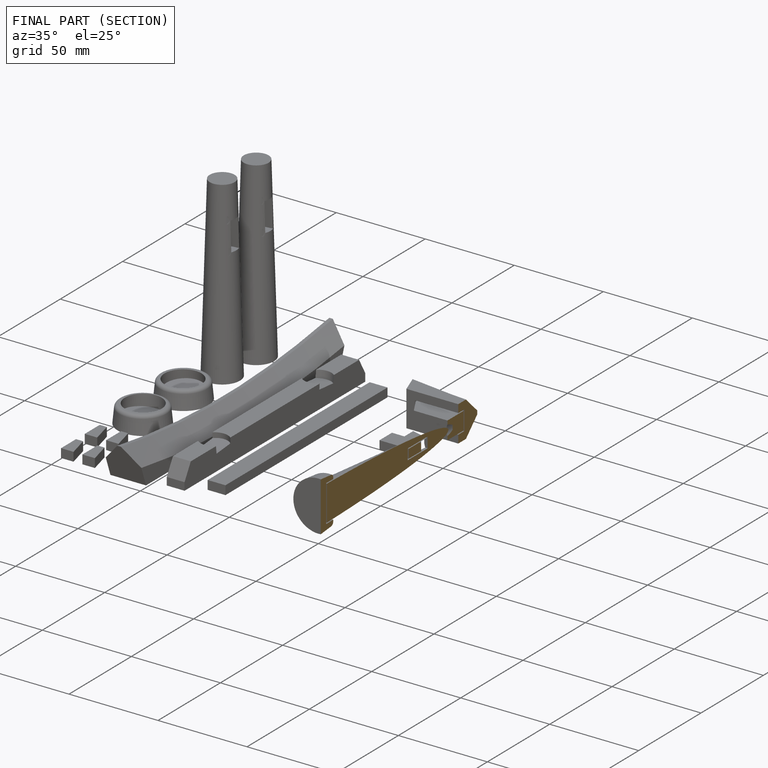
[diagram: finished part — half-section view (interior)]
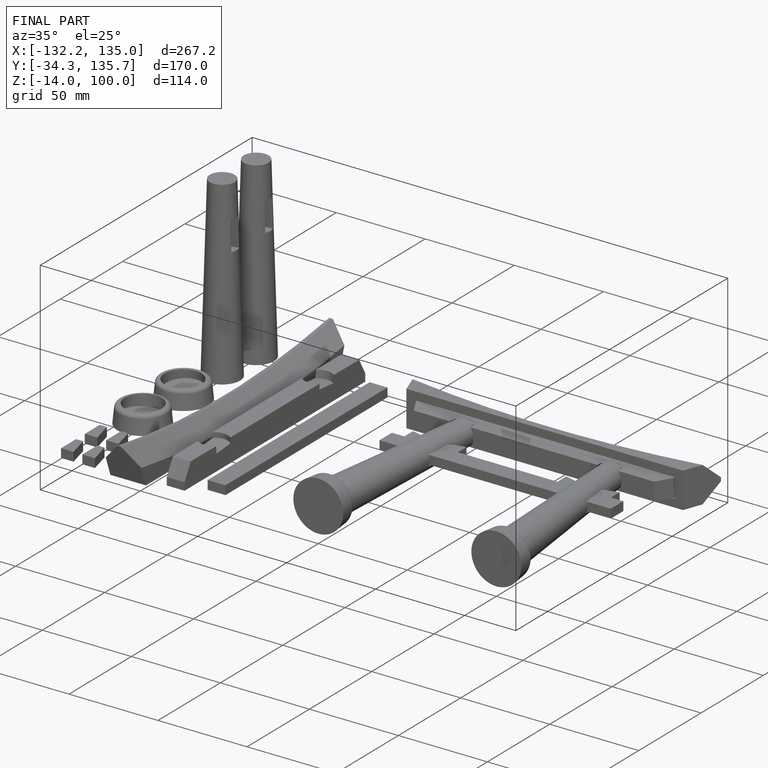
[diagram: finished part — iso view with bounding-box wireframe]
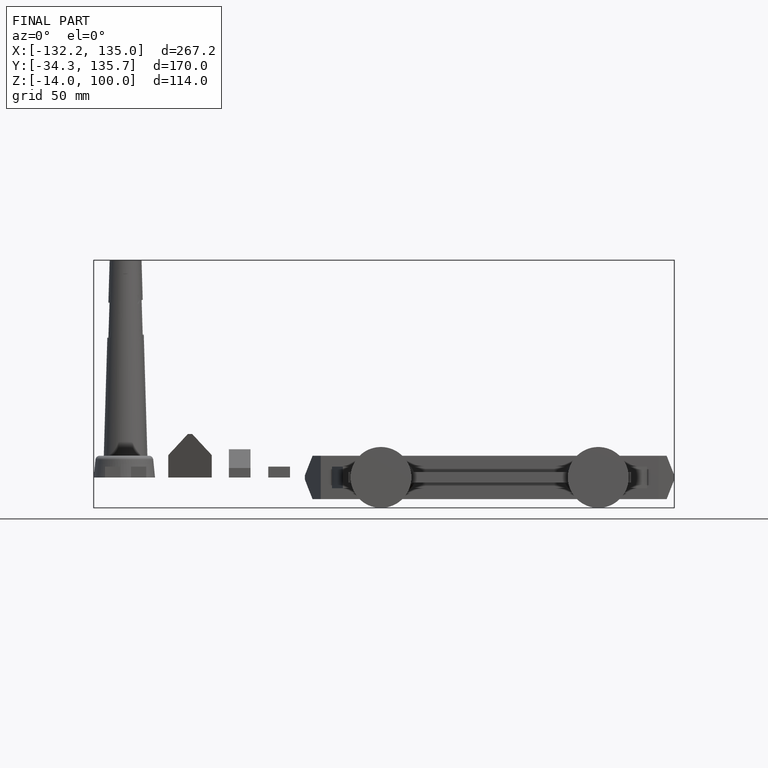
[diagram: finished part — front view with bounding-box wireframe]
